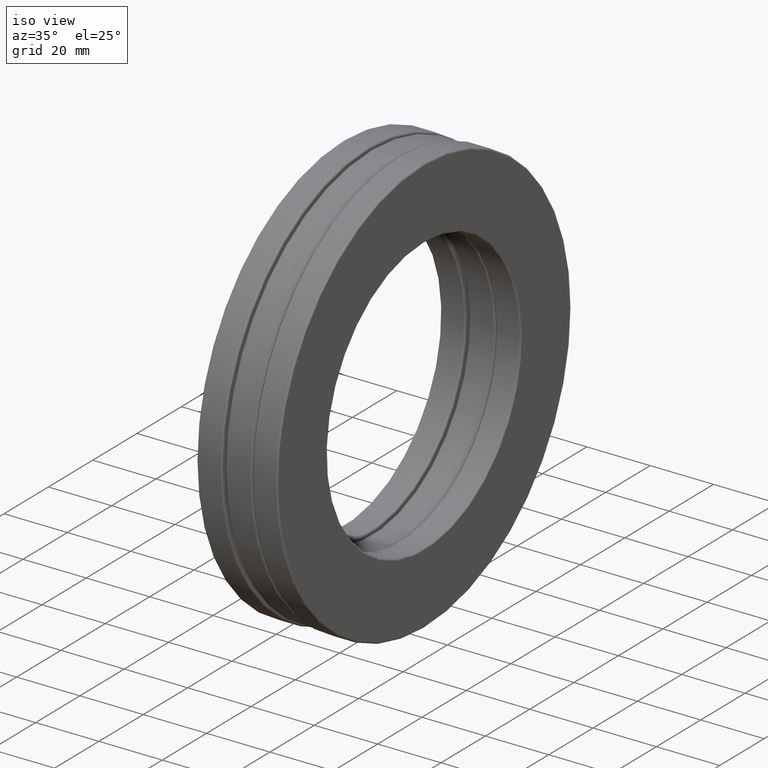
[diagram: clean part render]
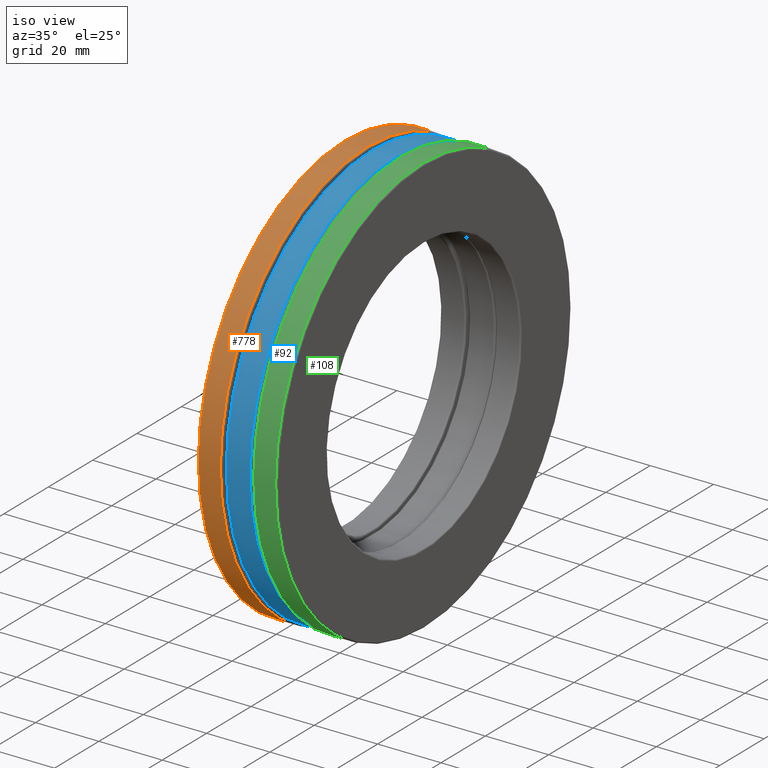
[diagram: same view with three faces highlighted in distinct colors, each labeled with its STEP entity id]
A machine part, iso view with three faces highlighted in distinct colors.
Their STEP definitions:

[orange] entity #778 — the highlighted cylindrical surface (bore or boss wall) has radius 66.2781 mm, axis along (-1, -0, -0).
#24 = EDGE_LOOP ( 'NONE', ( #961 ) ) ;
#93 = CARTESIAN_POINT ( 'NONE',  ( -0.2074999999999997700, 0.0000000000000000000, 2.609375000000000000 ) ) ;
#116 = CARTESIAN_POINT ( 'NONE',  ( 0.0000000000000000000, 0.0000000000000000000, 0.0000000000000000000 ) ) ;
#186 = EDGE_CURVE ( 'NONE', #1404, #1404, #1245, .T. ) ;
#233 = AXIS2_PLACEMENT_3D ( 'NONE', #1398, #1300, #1295 ) ;
#267 = FACE_OUTER_BOUND ( 'NONE', #364, .T. ) ;
#341 = DIRECTION ( 'NONE',  ( 0.0000000000000000000, 0.0000000000000000000, 1.000000000000000000 ) ) ;
#354 = DIRECTION ( 'NONE',  ( 0.0000000000000000000, 0.0000000000000000000, 1.000000000000000000 ) ) ;
#364 = EDGE_LOOP ( 'NONE', ( #1172 ) ) ;
#370 = VERTEX_POINT ( 'NONE', #1236 ) ;
#427 = EDGE_CURVE ( 'NONE', #370, #370, #507, .T. ) ;
#491 = AXIS2_PLACEMENT_3D ( 'NONE', #673, #1460, #341 ) ;
#492 = FACE_OUTER_BOUND ( 'NONE', #24, .T. ) ;
#505 = CYLINDRICAL_SURFACE ( 'NONE', #1109, 2.609375000000000000 ) ;
#507 = CIRCLE ( 'NONE', #233, 2.609375000000000000 ) ;
#673 = CARTESIAN_POINT ( 'NONE',  ( -0.2074999999999997700, 0.0000000000000000000, 0.0000000000000000000 ) ) ;
#778 = ADVANCED_FACE ( 'NONE', ( #492, #267 ), #505, .T. ) ;
#918 = DIRECTION ( 'NONE',  ( -1.000000000000000000, -0.0000000000000000000, -0.0000000000000000000 ) ) ;
#961 = ORIENTED_EDGE ( 'NONE', *, *, #427, .F. ) ;
#1109 = AXIS2_PLACEMENT_3D ( 'NONE', #116, #918, #354 ) ;
#1172 = ORIENTED_EDGE ( 'NONE', *, *, #186, .T. ) ;
#1236 = CARTESIAN_POINT ( 'NONE',  ( -0.4800000000000002000, 0.0000000000000000000, 2.609375000000000000 ) ) ;
#1245 = CIRCLE ( 'NONE', #491, 2.609375000000000000 ) ;
#1295 = DIRECTION ( 'NONE',  ( 0.0000000000000000000, 0.0000000000000000000, 1.000000000000000000 ) ) ;
#1300 = DIRECTION ( 'NONE',  ( -1.000000000000000000, -0.0000000000000000000, -0.0000000000000000000 ) ) ;
#1398 = CARTESIAN_POINT ( 'NONE',  ( -0.4800000000000002000, 0.0000000000000000000, 0.0000000000000000000 ) ) ;
#1404 = VERTEX_POINT ( 'NONE', #93 ) ;
#1460 = DIRECTION ( 'NONE',  ( -1.000000000000000000, -0.0000000000000000000, -0.0000000000000000000 ) ) ;

[blue] entity #92 — the highlighted cylindrical surface (bore or boss wall) has radius 65.7701 mm, axis along (-1, -0, -0).
#25 = ORIENTED_EDGE ( 'NONE', *, *, #249, .F. ) ;
#63 = DIRECTION ( 'NONE',  ( -1.000000000000000000, -0.0000000000000000000, -0.0000000000000000000 ) ) ;
#92 = ADVANCED_FACE ( 'NONE', ( #523, #541 ), #509, .T. ) ;
#214 = DIRECTION ( 'NONE',  ( 0.0000000000000000000, 0.0000000000000000000, 1.000000000000000000 ) ) ;
#249 = EDGE_CURVE ( 'NONE', #592, #592, #929, .T. ) ;
#276 = CARTESIAN_POINT ( 'NONE',  ( 0.0000000000000000000, 0.0000000000000000000, 0.0000000000000000000 ) ) ;
#287 = DIRECTION ( 'NONE',  ( 0.0000000000000000000, 0.0000000000000000000, 1.000000000000000000 ) ) ;
#311 = CIRCLE ( 'NONE', #1256, 2.589375000000000000 ) ;
#430 = CARTESIAN_POINT ( 'NONE',  ( -0.1475000000000001300, 0.0000000000000000000, 2.589375000000000000 ) ) ;
#478 = AXIS2_PLACEMENT_3D ( 'NONE', #276, #63, #287 ) ;
#509 = CYLINDRICAL_SURFACE ( 'NONE', #478, 2.589375000000000000 ) ;
#523 = FACE_OUTER_BOUND ( 'NONE', #1310, .T. ) ;
#541 = FACE_OUTER_BOUND ( 'NONE', #1281, .T. ) ;
#592 = VERTEX_POINT ( 'NONE', #430 ) ;
#792 = DIRECTION ( 'NONE',  ( -1.000000000000000000, -0.0000000000000000000, -0.0000000000000000000 ) ) ;
#804 = AXIS2_PLACEMENT_3D ( 'NONE', #1239, #792, #214 ) ;
#811 = CARTESIAN_POINT ( 'NONE',  ( 0.1475000000000001000, 0.0000000000000000000, 2.589375000000000000 ) ) ;
#868 = DIRECTION ( 'NONE',  ( -1.000000000000000000, -0.0000000000000000000, -0.0000000000000000000 ) ) ;
#929 = CIRCLE ( 'NONE', #804, 2.589375000000000000 ) ;
#967 = CARTESIAN_POINT ( 'NONE',  ( 0.1475000000000001000, 0.0000000000000000000, 0.0000000000000000000 ) ) ;
#1078 = VERTEX_POINT ( 'NONE', #811 ) ;
#1239 = CARTESIAN_POINT ( 'NONE',  ( -0.1475000000000001300, 0.0000000000000000000, 0.0000000000000000000 ) ) ;
#1256 = AXIS2_PLACEMENT_3D ( 'NONE', #967, #868, #1311 ) ;
#1281 = EDGE_LOOP ( 'NONE', ( #25 ) ) ;
#1310 = EDGE_LOOP ( 'NONE', ( #1453 ) ) ;
#1311 = DIRECTION ( 'NONE',  ( 0.0000000000000000000, 0.0000000000000000000, 1.000000000000000000 ) ) ;
#1344 = EDGE_CURVE ( 'NONE', #1078, #1078, #311, .T. ) ;
#1453 = ORIENTED_EDGE ( 'NONE', *, *, #1344, .T. ) ;

[green] entity #108 — the highlighted cylindrical surface (bore or boss wall) has radius 66.2781 mm, axis along (-1, -0, -0).
#103 = FACE_OUTER_BOUND ( 'NONE', #452, .T. ) ;
#108 = ADVANCED_FACE ( 'NONE', ( #103, #723 ), #1326, .T. ) ;
#218 = EDGE_CURVE ( 'NONE', #623, #623, #1098, .T. ) ;
#254 = AXIS2_PLACEMENT_3D ( 'NONE', #1088, #402, #984 ) ;
#350 = AXIS2_PLACEMENT_3D ( 'NONE', #450, #1336, #654 ) ;
#356 = VERTEX_POINT ( 'NONE', #357 ) ;
#357 = CARTESIAN_POINT ( 'NONE',  ( 0.2074999999999999100, 0.0000000000000000000, 2.609375000000000000 ) ) ;
#379 = EDGE_LOOP ( 'NONE', ( #1188 ) ) ;
#398 = AXIS2_PLACEMENT_3D ( 'NONE', #935, #1263, #693 ) ;
#402 = DIRECTION ( 'NONE',  ( -1.000000000000000000, -0.0000000000000000000, -0.0000000000000000000 ) ) ;
#450 = CARTESIAN_POINT ( 'NONE',  ( 0.0000000000000000000, 0.0000000000000000000, 0.0000000000000000000 ) ) ;
#452 = EDGE_LOOP ( 'NONE', ( #1185 ) ) ;
#623 = VERTEX_POINT ( 'NONE', #658 ) ;
#654 = DIRECTION ( 'NONE',  ( 0.0000000000000000000, 0.0000000000000000000, 1.000000000000000000 ) ) ;
#658 = CARTESIAN_POINT ( 'NONE',  ( 0.4800000000000000900, 0.0000000000000000000, 2.609375000000000000 ) ) ;
#693 = DIRECTION ( 'NONE',  ( 0.0000000000000000000, 0.0000000000000000000, 1.000000000000000000 ) ) ;
#723 = FACE_OUTER_BOUND ( 'NONE', #379, .T. ) ;
#935 = CARTESIAN_POINT ( 'NONE',  ( 0.4800000000000000900, 0.0000000000000000000, 0.0000000000000000000 ) ) ;
#984 = DIRECTION ( 'NONE',  ( 0.0000000000000000000, 0.0000000000000000000, 1.000000000000000000 ) ) ;
#1088 = CARTESIAN_POINT ( 'NONE',  ( 0.2074999999999999100, 0.0000000000000000000, 0.0000000000000000000 ) ) ;
#1098 = CIRCLE ( 'NONE', #398, 2.609375000000000000 ) ;
#1185 = ORIENTED_EDGE ( 'NONE', *, *, #1307, .F. ) ;
#1188 = ORIENTED_EDGE ( 'NONE', *, *, #218, .T. ) ;
#1263 = DIRECTION ( 'NONE',  ( -1.000000000000000000, -0.0000000000000000000, -0.0000000000000000000 ) ) ;
#1307 = EDGE_CURVE ( 'NONE', #356, #356, #1406, .T. ) ;
#1326 = CYLINDRICAL_SURFACE ( 'NONE', #350, 2.609375000000000000 ) ;
#1336 = DIRECTION ( 'NONE',  ( -1.000000000000000000, -0.0000000000000000000, -0.0000000000000000000 ) ) ;
#1406 = CIRCLE ( 'NONE', #254, 2.609375000000000000 ) ;